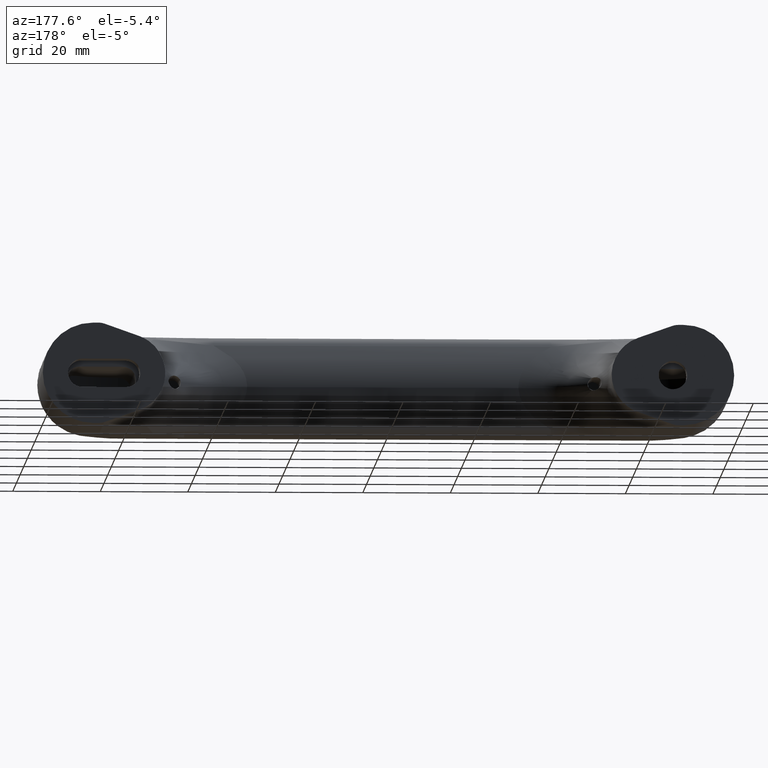
[diagram: clean part render]
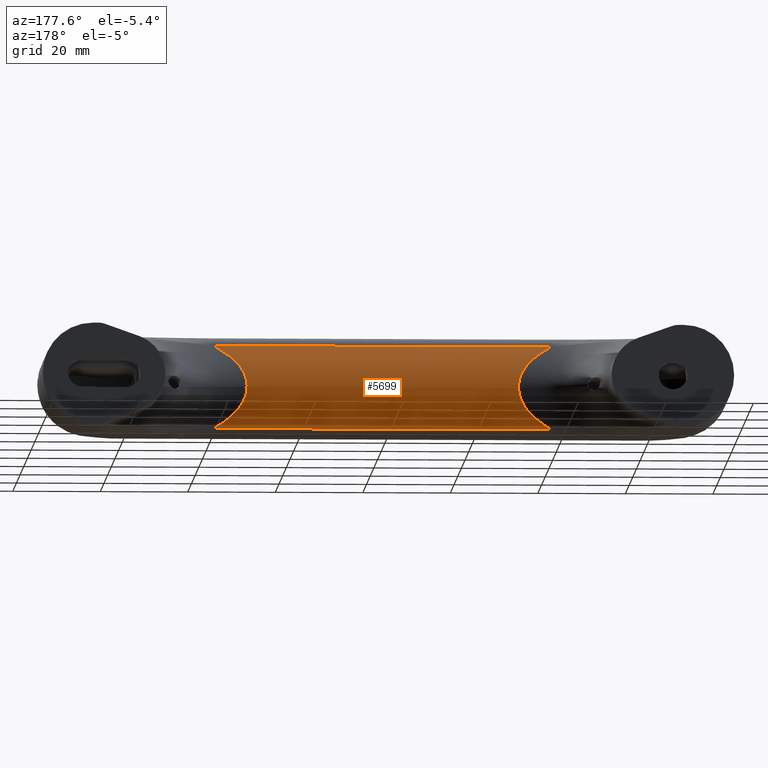
[diagram: same view with one face highlighted and labeled with its STEP entity id]
A machine part, auxiliary view. The second image highlights one B-rep face of the part: STEP entity #5699.
In plain terms, the highlighted face is a freeform B-spline surface patch.
Its self-contained STEP definition (entity closure, byte-faithful):
#1261=CARTESIAN_POINT('',(38.534859386321003,-9.500000000000249,33.545517328095812));
#1262=VERTEX_POINT('',#1261);
#1327=CARTESIAN_POINT('',(-38.534859386320953,-9.500000000000249,33.545517328095812));
#1328=VERTEX_POINT('',#1327);
#1339=CARTESIAN_POINT('',(38.534859386321003,-9.500000000000249,33.545517328095812));
#1340=CARTESIAN_POINT('',(-38.534859386320953,-9.500000000000249,33.545517328095812));
#1341=QUASI_UNIFORM_CURVE('',1,(#1339,#1340),.UNSPECIFIED.,.F.,.U.);
#1342=EDGE_CURVE('',#1262,#1328,#1341,.T.);
#2111=CARTESIAN_POINT('',(-38.534859386320498,9.500000000000000,33.545517328095649));
#2112=VERTEX_POINT('',#2111);
#2177=CARTESIAN_POINT('',(38.534859386320498,9.500000000000000,33.545517328095698));
#2178=VERTEX_POINT('',#2177);
#2189=CARTESIAN_POINT('',(-38.534859386320498,9.500000000000000,33.545517328095649));
#2190=CARTESIAN_POINT('',(38.534859386320498,9.500000000000000,33.545517328095698));
#2191=QUASI_UNIFORM_CURVE('',1,(#2189,#2190),.UNSPECIFIED.,.F.,.U.);
#2192=EDGE_CURVE('',#2112,#2178,#2191,.T.);
#3765=CARTESIAN_POINT('',(38.534859386320512,9.499999999999995,33.545517328095663));
#3766=CARTESIAN_POINT('',(38.077271965248151,9.254607586610785,33.403839952168312));
#3767=CARTESIAN_POINT('',(37.627365516028050,8.996060830638058,33.261841758665412));
#3768=CARTESIAN_POINT('',(36.744956914638188,8.448262175029168,32.978780360900423));
#3769=CARTESIAN_POINT('',(36.312436739692750,8.159045472461072,32.837709899823068));
#3770=CARTESIAN_POINT('',(35.679031744305291,7.697396036512909,32.628222589983423));
#3771=CARTESIAN_POINT('',(35.470469190862033,7.538856624779220,32.558749675911862));
#3772=CARTESIAN_POINT('',(35.059040626843782,7.211350367802453,32.420807812948922));
#3773=CARTESIAN_POINT('',(34.855777354345982,7.042019045001726,32.352202894225456));
#3774=CARTESIAN_POINT('',(34.260176011151493,6.520407833581869,32.149975312320443));
#3775=CARTESIAN_POINT('',(33.881011368648238,6.154058451015720,32.019605137396553));
#3776=CARTESIAN_POINT('',(33.345137222548573,5.569907362104523,31.833605457163841));
#3777=CARTESIAN_POINT('',(33.172018225728443,5.369390327798539,31.773207448558718));
#3778=CARTESIAN_POINT('',(32.921694665873147,5.058705876084039,31.685495511462641));
#3779=CARTESIAN_POINT('',(32.839815575681200,4.953489745785322,31.656740098319698));
#3780=CARTESIAN_POINT('',(32.679406758629618,4.739501024793751,31.600288738184709));
#3781=CARTESIAN_POINT('',(32.601046245923179,4.630945652900462,31.572652254838410));
#3782=CARTESIAN_POINT('',(32.372468022378662,4.301250177080633,31.491881317673521));
#3783=CARTESIAN_POINT('',(32.228465765230013,4.075733406468028,31.440784153320038));
#3784=CARTESIAN_POINT('',(32.026552986442248,3.727811610637446,31.368911880766060));
#3785=CARTESIAN_POINT('',(31.961601126543972,3.610227182709711,31.345751415859819));
#3786=CARTESIAN_POINT('',(31.836711511077329,3.371620565969894,31.301152299973118));
#3787=CARTESIAN_POINT('',(31.776658558539619,3.250342361137707,31.279672353809719));
#3788=CARTESIAN_POINT('',(31.491517261035241,2.638471083949001,31.177546582224458));
#3789=CARTESIAN_POINT('',(31.311439321299240,2.132053559900774,31.112612277995531));
#3790=CARTESIAN_POINT('',(31.156944883621229,1.474080466814490,31.056807859119122));
#3791=CARTESIAN_POINT('',(31.129597434301949,1.341230879655712,31.046921780634079));
#3792=CARTESIAN_POINT('',(31.082366503076511,1.072892927800973,31.029839878708991));
#3793=CARTESIAN_POINT('',(31.062459288809229,0.937036079826700,31.022635465142351));
#3794=CARTESIAN_POINT('',(31.015036262993650,0.530444119014790,31.005468306597230));
#3795=CARTESIAN_POINT('',(30.983969372974649,-0.011583325065383,30.994209645539200));
#3796=CARTESIAN_POINT('',(31.016852892813102,-0.553421497230174,31.006126397688199));
#3797=CARTESIAN_POINT('',(31.065594608660529,-0.959728879197243,31.023770186836831));
#3798=CARTESIAN_POINT('',(31.085943164466979,-1.095523104047972,31.031133937395261));
#3799=CARTESIAN_POINT('',(31.134027196673500,-1.363664671778863,31.048523296706311));
#3800=CARTESIAN_POINT('',(31.161780173079880,-1.496347237272402,31.058555241256450));
#3801=CARTESIAN_POINT('',(31.318151206656211,-2.153177009623994,31.115032898793778));
#3802=CARTESIAN_POINT('',(31.499228716473041,-2.657707485247723,31.180318697778858));
#3803=CARTESIAN_POINT('',(31.784488426430791,-3.266413275996841,31.282473917540919));
#3804=CARTESIAN_POINT('',(31.844596473047879,-3.387217481809911,31.303970916264308));
#3805=CARTESIAN_POINT('',(31.970127364011319,-3.625909875042313,31.348792978816629));
#3806=CARTESIAN_POINT('',(32.035385930257107,-3.743508670216759,31.372059449642549));
#3807=CARTESIAN_POINT('',(32.238170993316828,-4.091399516872632,31.444231213989202));
#3808=CARTESIAN_POINT('',(32.382690686500872,-4.316797383386958,31.495503212779280));
#3809=CARTESIAN_POINT('',(32.611932234686222,-4.646202597888361,31.576493638051819));
#3810=CARTESIAN_POINT('',(32.690553688318531,-4.754717437633035,31.604216750587710));
#3811=CARTESIAN_POINT('',(32.851058454336282,-4.968089809610651,31.660690773239779));
#3812=CARTESIAN_POINT('',(32.932896608282533,-5.072904258745856,31.689426004127299));
#3813=CARTESIAN_POINT('',(33.182825687083700,-5.382150070745020,31.776982376047648));
#3814=CARTESIAN_POINT('',(33.355318961635028,-5.581398587705478,31.837149763509419));
#3815=CARTESIAN_POINT('',(33.888215790723187,-6.161096223328269,32.022084410060280));
#3816=CARTESIAN_POINT('',(34.263927268162021,-6.523627621182219,32.151245912268450));
#3817=CARTESIAN_POINT('',(35.048280774066932,-7.210673494643157,32.417567643303279));
#3818=CARTESIAN_POINT('',(35.456980864266427,-7.535117974977596,32.554750144901448));
#3819=CARTESIAN_POINT('',(35.985382652176348,-7.920779172170067,32.729550414263947));
#3820=CARTESIAN_POINT('',(36.091944484702481,-7.996910600453909,32.764678253014729));
#3821=CARTESIAN_POINT('',(36.306771485055393,-8.147248723537595,32.835232797658733));
#3822=CARTESIAN_POINT('',(36.415011687073559,-8.221434810132530,32.870651017052651));
#3823=CARTESIAN_POINT('',(36.741097252150389,-8.440488401328986,32.976942013420043));
#3824=CARTESIAN_POINT('',(36.960671946956033,-8.582115614751952,33.047971060728337));
#3825=CARTESIAN_POINT('',(37.625433173628089,-8.994984211898409,33.261235608350141));
#3826=CARTESIAN_POINT('',(38.076632432539917,-9.254264621600212,33.403641941227143));
#3827=CARTESIAN_POINT('',(38.534859386321003,-9.500000000000251,33.545517328095819));
#3828=B_SPLINE_CURVE_WITH_KNOTS('',3,(#3765,#3766,#3767,#3768,#3769,#3770,#3771,#3772,#3773,#3774,#3775,#3776,#3777,#3778,#3779,#3780,#3781,#3782,#3783,#3784,#3785,#3786,#3787,#3788,#3789,#3790,#3791,#3792,#3793,#3794,#3795,#3796,#3797,#3798,#3799,#3800,#3801,#3802,#3803,#3804,#3805,#3806,#3807,#3808,#3809,#3810,#3811,#3812,#3813,#3814,#3815,#3816,#3817,#3818,#3819,#3820,#3821,#3822,#3823,#3824,#3825,#3826,#3827),.UNSPECIFIED.,.F.,.U.,(4,2,2,2,2,2,2,2,2,2,2,2,2,2,2,1,2,2,2,2,2,2,2,2,2,2,2,2,2,2,2,4),(0.0,0.062499999999999,0.124999999999998,0.156249999999998,0.187499999999998,0.249999999999998,0.281249999999998,0.296874999999998,0.312499999999999,0.343749999999999,0.359374999999999,0.374999999999999,0.437499999999999,0.453124999999999,0.468749999999999,0.500000000000000,0.531250000000000,0.546875000000000,0.562500000000000,0.625000000000001,0.640625000000001,0.656250000000001,0.687500000000001,0.703125000000001,0.718750000000001,0.750000000000001,0.812500000000002,0.875000000000003,0.890625000000003,0.906250000000003,0.937500000000002,1.0),.UNSPECIFIED.);
#3829=EDGE_CURVE('',#2178,#1262,#3828,.T.);
#4343=CARTESIAN_POINT('',(-38.534859386320967,-9.500000000000236,33.545517328095812));
#4344=CARTESIAN_POINT('',(-38.077271965248613,-9.254607586611035,33.403839952168461));
#4345=CARTESIAN_POINT('',(-37.627365516028497,-8.996060830638315,33.261841758665540));
#4346=CARTESIAN_POINT('',(-36.744956914638628,-8.448262175029448,32.978780360900558));
#4347=CARTESIAN_POINT('',(-36.312436739693183,-8.159045472461362,32.837709899823210));
#4348=CARTESIAN_POINT('',(-35.679031744305703,-7.697396036513218,32.628222589983551));
#4349=CARTESIAN_POINT('',(-35.470469190862460,-7.538856624779545,32.558749675911997));
#4350=CARTESIAN_POINT('',(-35.059040626844201,-7.211350367802795,32.420807812949050));
#4351=CARTESIAN_POINT('',(-34.855777354346387,-7.042019045002066,32.352202894225599));
#4352=CARTESIAN_POINT('',(-34.260176011151877,-6.520407833582228,32.149975312320556));
#4353=CARTESIAN_POINT('',(-33.881011368648608,-6.154058451016093,32.019605137396667));
#4354=CARTESIAN_POINT('',(-33.345137222548921,-5.569907362104926,31.833605457163959));
#4355=CARTESIAN_POINT('',(-33.172018225728799,-5.369390327798955,31.773207448558850));
#4356=CARTESIAN_POINT('',(-32.921694665873481,-5.058705876084467,31.685495511462740));
#4357=CARTESIAN_POINT('',(-32.839815575681541,-4.953489745785747,31.656740098319808));
#4358=CARTESIAN_POINT('',(-32.679406758629952,-4.739501024794189,31.600288738184830));
#4359=CARTESIAN_POINT('',(-32.601046245923513,-4.630945652900908,31.572652254838520));
#4360=CARTESIAN_POINT('',(-32.372468022378953,-4.301250177081093,31.491881317673620));
#4361=CARTESIAN_POINT('',(-32.228465765230297,-4.075733406468499,31.440784153320148));
#4362=CARTESIAN_POINT('',(-32.026552986442510,-3.727811610637933,31.368911880766159));
#4363=CARTESIAN_POINT('',(-31.961601126544249,-3.610227182710196,31.345751415859919));
#4364=CARTESIAN_POINT('',(-31.836711511077560,-3.371620565970388,31.301152299973172));
#4365=CARTESIAN_POINT('',(-31.776658558539861,-3.250342361138205,31.279672353809790));
#4366=CARTESIAN_POINT('',(-31.491517261035451,-2.638471083949516,31.177546582224551));
#4367=CARTESIAN_POINT('',(-31.311439321299432,-2.132053559901305,31.112612277995591));
#4368=CARTESIAN_POINT('',(-31.156944883621371,-1.474080466815041,31.056807859119161));
#4369=CARTESIAN_POINT('',(-31.129597434302070,-1.341230879656264,31.046921780634129));
#4370=CARTESIAN_POINT('',(-31.082366503076610,-1.072892927801533,31.029839878709019));
#4371=CARTESIAN_POINT('',(-31.062459288809311,-0.937036079827265,31.022635465142379));
#4372=CARTESIAN_POINT('',(-31.015036262993679,-0.530444119015356,31.005468306597251));
#4373=CARTESIAN_POINT('',(-30.983969372974659,0.011583325064814,30.994209645539222));
#4374=CARTESIAN_POINT('',(-31.016852892813041,0.553421497229605,31.006126397688170));
#4375=CARTESIAN_POINT('',(-31.065594608660451,0.959728879196673,31.023770186836781));
#4376=CARTESIAN_POINT('',(-31.085943164466890,1.095523104047406,31.031133937395229));
#4377=CARTESIAN_POINT('',(-31.134027196673390,1.363664671778305,31.048523296706279));
#4378=CARTESIAN_POINT('',(-31.161780173079769,1.496347237271843,31.058555241256411));
#4379=CARTESIAN_POINT('',(-31.318151206656040,2.153177009623452,31.115032898793721));
#4380=CARTESIAN_POINT('',(-31.499228716472832,2.657707485247194,31.180318697778770));
#4381=CARTESIAN_POINT('',(-31.784488426430560,3.266413275996327,31.282473917540830));
#4382=CARTESIAN_POINT('',(-31.844596473047620,3.387217481809397,31.303970916264220));
#4383=CARTESIAN_POINT('',(-31.970127364011041,3.625909875041809,31.348792978816519));
#4384=CARTESIAN_POINT('',(-32.035385930256830,3.743508670216260,31.372059449642439));
#4385=CARTESIAN_POINT('',(-32.238170993316523,4.091399516872147,31.444231213989099));
#4386=CARTESIAN_POINT('',(-32.382690686500567,4.316797383386483,31.495503212779191));
#4387=CARTESIAN_POINT('',(-32.611932234685902,4.646202597887896,31.576493638051719));
#4388=CARTESIAN_POINT('',(-32.690553688318190,4.754717437632571,31.604216750587600));
#4389=CARTESIAN_POINT('',(-32.851058454335913,4.968089809610195,31.660690773239669));
#4390=CARTESIAN_POINT('',(-32.932896608282157,5.072904258745404,31.689426004127171));
#4391=CARTESIAN_POINT('',(-33.182825687083330,5.382150070744587,31.776982376047510));
#4392=CARTESIAN_POINT('',(-33.355318961634659,5.581398587705055,31.837149763509291));
#4393=CARTESIAN_POINT('',(-33.888215790722768,6.161096223327869,32.022084410060152));
#4394=CARTESIAN_POINT('',(-34.263927268161602,6.523627621181834,32.151245912268301));
#4395=CARTESIAN_POINT('',(-35.048280774066491,7.210673494642797,32.417567643303137));
#4396=CARTESIAN_POINT('',(-35.456980864265979,7.535117974977251,32.554750144901291));
#4397=CARTESIAN_POINT('',(-35.985382652175879,7.920779172169741,32.729550414263798));
#4398=CARTESIAN_POINT('',(-36.091944484702019,7.996910600453582,32.764678253014573));
#4399=CARTESIAN_POINT('',(-36.306771485054931,8.147248723537283,32.835232797658577));
#4400=CARTESIAN_POINT('',(-36.415011687073132,8.221434810132218,32.870651017052509));
#4401=CARTESIAN_POINT('',(-36.741097252149927,8.440488401328686,32.976942013419887));
#4402=CARTESIAN_POINT('',(-36.960671946955557,8.582115614751647,33.047971060728187));
#4403=CARTESIAN_POINT('',(-37.625433173627613,8.994984211898121,33.261235608349992));
#4404=CARTESIAN_POINT('',(-38.076632432539462,9.254264621599944,33.403641941226986));
#4405=CARTESIAN_POINT('',(-38.534859386320498,9.499999999999988,33.545517328095663));
#4406=B_SPLINE_CURVE_WITH_KNOTS('',3,(#4343,#4344,#4345,#4346,#4347,#4348,#4349,#4350,#4351,#4352,#4353,#4354,#4355,#4356,#4357,#4358,#4359,#4360,#4361,#4362,#4363,#4364,#4365,#4366,#4367,#4368,#4369,#4370,#4371,#4372,#4373,#4374,#4375,#4376,#4377,#4378,#4379,#4380,#4381,#4382,#4383,#4384,#4385,#4386,#4387,#4388,#4389,#4390,#4391,#4392,#4393,#4394,#4395,#4396,#4397,#4398,#4399,#4400,#4401,#4402,#4403,#4404,#4405),.UNSPECIFIED.,.F.,.U.,(4,2,2,2,2,2,2,2,2,2,2,2,2,2,2,1,2,2,2,2,2,2,2,2,2,2,2,2,2,2,2,4),(0.0,0.062500000000001,0.125000000000003,0.156250000000004,0.187500000000005,0.250000000000006,0.281250000000007,0.296875000000007,0.312500000000007,0.343750000000007,0.359375000000007,0.375000000000007,0.437500000000007,0.453125000000007,0.468750000000007,0.500000000000007,0.531250000000007,0.546875000000007,0.562500000000006,0.625000000000006,0.640625000000006,0.656250000000006,0.687500000000006,0.703125000000005,0.718750000000005,0.750000000000005,0.812500000000004,0.875000000000003,0.890625000000003,0.906250000000002,0.937500000000002,1.0),.UNSPECIFIED.);
#4407=EDGE_CURVE('',#1328,#2112,#4406,.T.);
#5679=CARTESIAN_POINT('',(40.461602355637062,-9.927472729603291,33.799836877272412));
#5680=CARTESIAN_POINT('',(-40.509770929869909,-9.927472729603291,33.799836877272412));
#5681=CARTESIAN_POINT('',(40.461602355637055,0.265670951821498,27.553470395671493));
#5682=CARTESIAN_POINT('',(-40.509770929869909,0.265670951821498,27.553470395671493));
#5683=CARTESIAN_POINT('',(40.461602355637062,10.308119390764981,34.039339781019862));
#5684=CARTESIAN_POINT('',(-40.509770929869923,10.308119390764981,34.039339781019862));
#5692=(BOUNDED_SURFACE()B_SPLINE_SURFACE(1,2,((#5679,#5681,#5683),(#5680,#5682,#5684)),.UNSPECIFIED.,.F.,.F.,.U.)B_SPLINE_SURFACE_WITH_KNOTS((2,2),(3,3),(0.0,80.971373285506985),(0.0,21.920527325320361),.UNSPECIFIED.)GEOMETRIC_REPRESENTATION_ITEM()RATIONAL_B_SPLINE_SURFACE(((1.0,0.845026318542096,0.996764388166714),(1.0,0.845026318542096,0.996764388166714)))REPRESENTATION_ITEM('')SURFACE());
#5693=ORIENTED_EDGE('',*,*,#4407,.T.);
#5694=ORIENTED_EDGE('',*,*,#2192,.T.);
#5695=ORIENTED_EDGE('',*,*,#3829,.T.);
#5696=ORIENTED_EDGE('',*,*,#1342,.T.);
#5697=EDGE_LOOP('',(#5693,#5694,#5695,#5696));
#5698=FACE_OUTER_BOUND('',#5697,.T.);
#5699=ADVANCED_FACE('',(#5698),#5692,.T.);